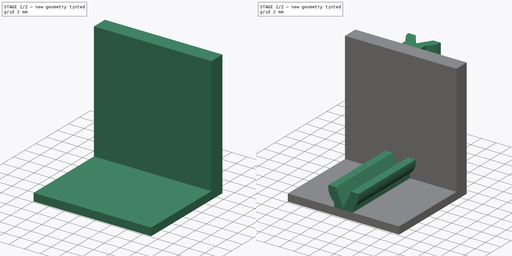
[diagram: build sequence overview — one tinted view per stage of 2, left to right]
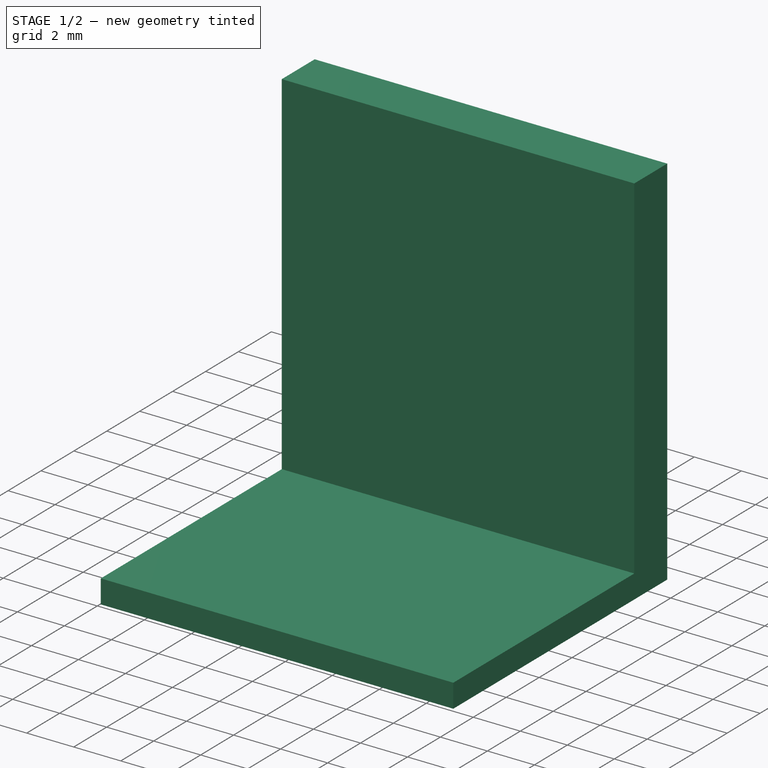
[diagram: stage 1 of 2 — iso view after this stage's code; geometry added in this stage tinted green]
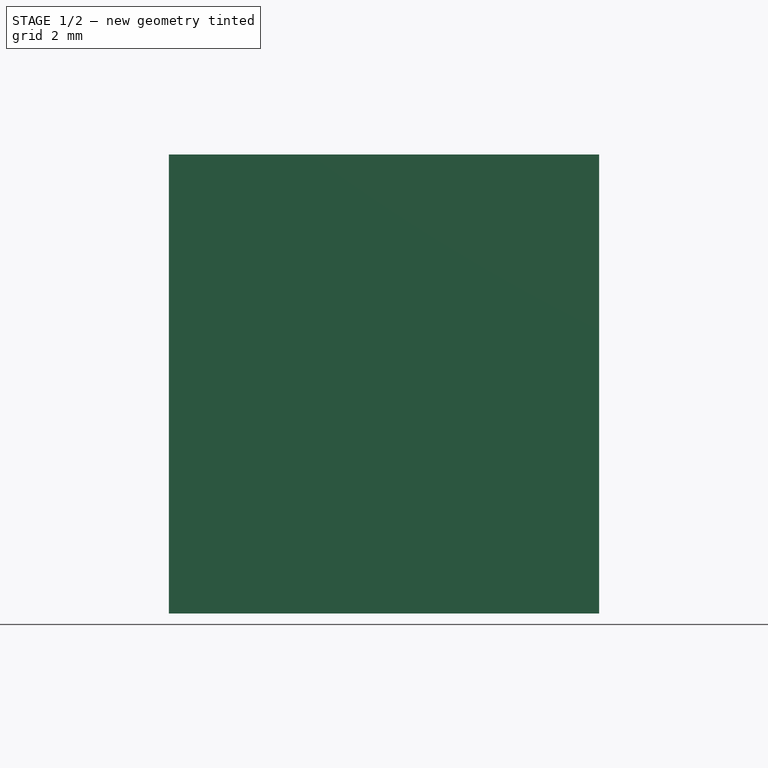
[diagram: stage 1 of 2 — front view after this stage's code; geometry added in this stage tinted green]
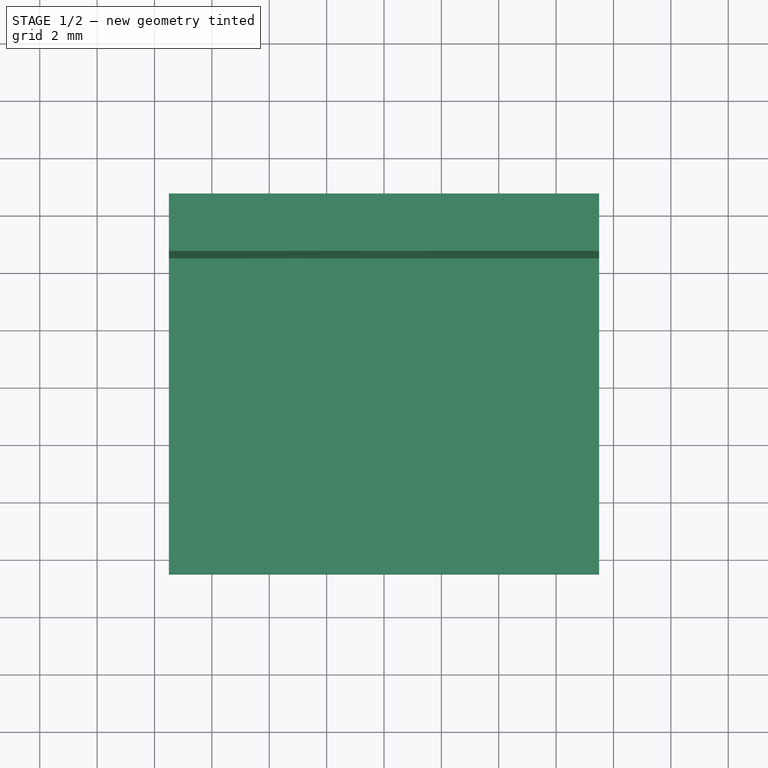
[diagram: stage 1 of 2 — top view after this stage's code; geometry added in this stage tinted green]
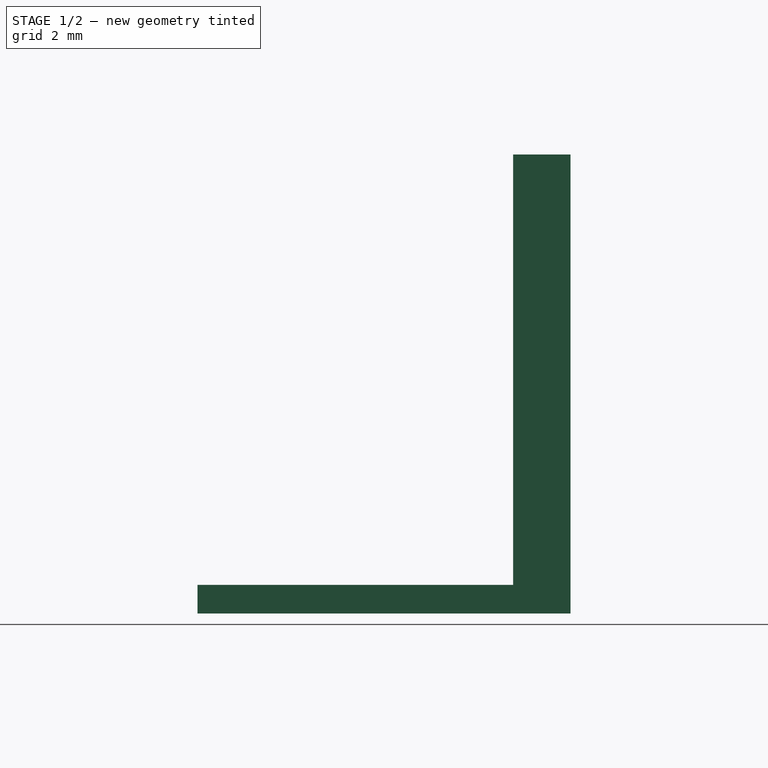
[diagram: stage 1 of 2 — right view after this stage's code; geometry added in this stage tinted green]
FCSTD DOCUMENT  (FreeCAD 0.16R6712 (Git))
Label: edge
License: All rights reserved
LicenseURL: http://en.wikipedia.org/wiki/All_rights_reserved
objects: Sketcher::SketchObject×4, PartDesign::Pad×4
note: 12 computed .brp shape members not serialized (recipe doc carries the construction recipe); baked Part::Feature solids carry a one-line shape summary decoded from their .brp

FEATURE [Sketcher::SketchObject] Sketch
  sketch-geometry (4):
    g0: LineSegment StartX=-7.5 StartY=6.5 StartZ=0 EndX=7.5 EndY=6.5 EndZ=0
    g1: LineSegment StartX=7.5 StartY=6.5 StartZ=0 EndX=7.5 EndY=-6.5 EndZ=0
    g2: LineSegment StartX=7.5 StartY=-6.5 StartZ=0 EndX=-7.5 EndY=-6.5 EndZ=0
    g3: LineSegment StartX=-7.5 StartY=-6.5 StartZ=0 EndX=-7.5 EndY=6.5 EndZ=0
  constraints (12):
    c: Coincident(g0,g1)
    c: Coincident(g1,g2)
    c: Coincident(g2,g3)
    c: Coincident(g3,g0)
    c: Horizontal(g0)
    c: Horizontal(g2)
    c: Vertical(g1)
    c: Vertical(g3)
    c: Symmetric(g0,g0,g-2)
    c: Symmetric(g0,g2,g-1)
    c: DistanceX(g0,g0) = 15
    c: DistanceY(g3,g3) = 13
FEATURE [PartDesign::Pad] Pad
  Length = 1
  Length2 = 100
  Sketch = -> Sketch
  Type = 0
FEATURE [Sketcher::SketchObject] Sketch001
  Placement = pos=(0,0,1) rot=(0,0,1;0rad)
  Support = -> Pad [Face6]
  sketch-geometry (4):
    g0: LineSegment StartX=-7.5 StartY=6.5 StartZ=0 EndX=7.5 EndY=6.5 EndZ=0
    g1: LineSegment StartX=7.5 StartY=6.5 StartZ=0 EndX=7.5 EndY=4.5 EndZ=0
    g2: LineSegment StartX=7.5 StartY=4.5 StartZ=0 EndX=-7.5 EndY=4.5 EndZ=0
    g3: LineSegment StartX=-7.5 StartY=4.5 StartZ=0 EndX=-7.5 EndY=6.5 EndZ=0
  constraints (12):
    c: Coincident(g0,g1)
    c: Coincident(g1,g2)
    c: Coincident(g2,g3)
    c: Coincident(g3,g0)
    c: Horizontal(g0)
    c: Horizontal(g2)
    c: Vertical(g1)
    c: Vertical(g3)
    c: DistanceY(g1,g1) = 2
    c: DistanceY(g-1,g1) = 4.5
    c: DistanceX(g0,g0) = 15
    c: Symmetric(g0,g0,g-2)
FEATURE [PartDesign::Pad] Pad001
  Length = 15
  Length2 = 100
  Sketch = -> Sketch001
  Type = 0
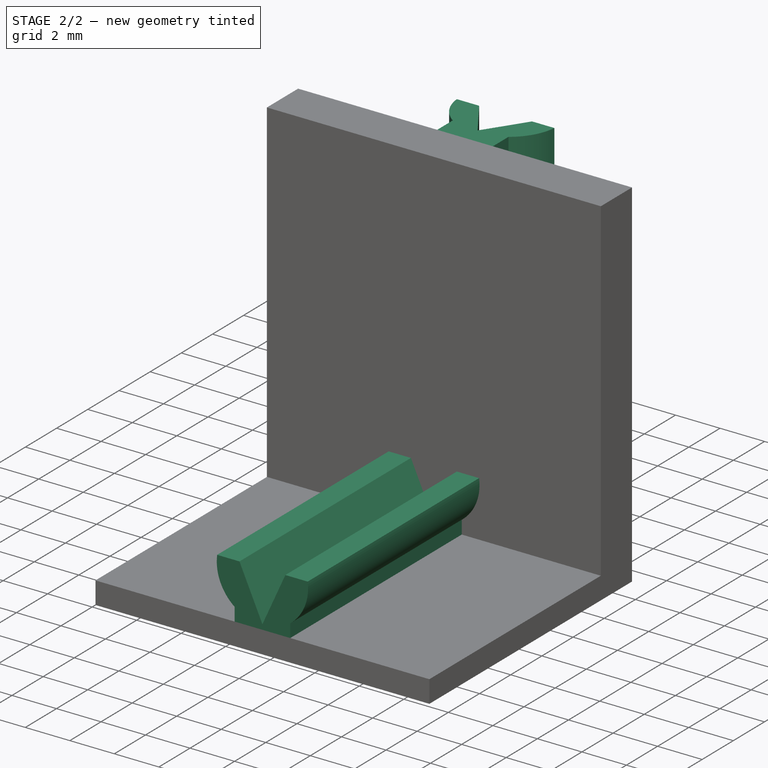
[diagram: stage 2 of 2 — iso view after this stage's code; geometry added in this stage tinted green]
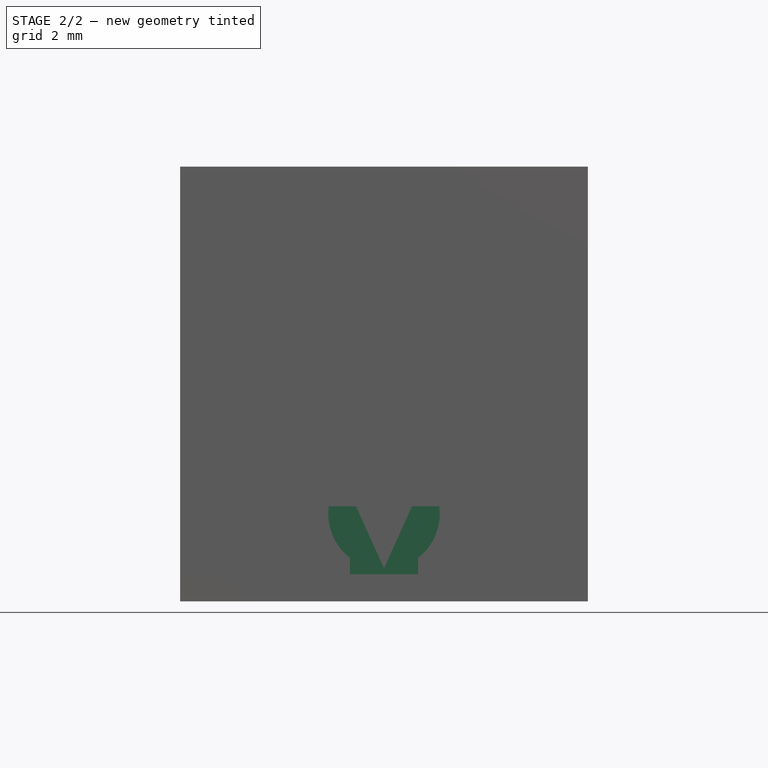
[diagram: stage 2 of 2 — front view after this stage's code; geometry added in this stage tinted green]
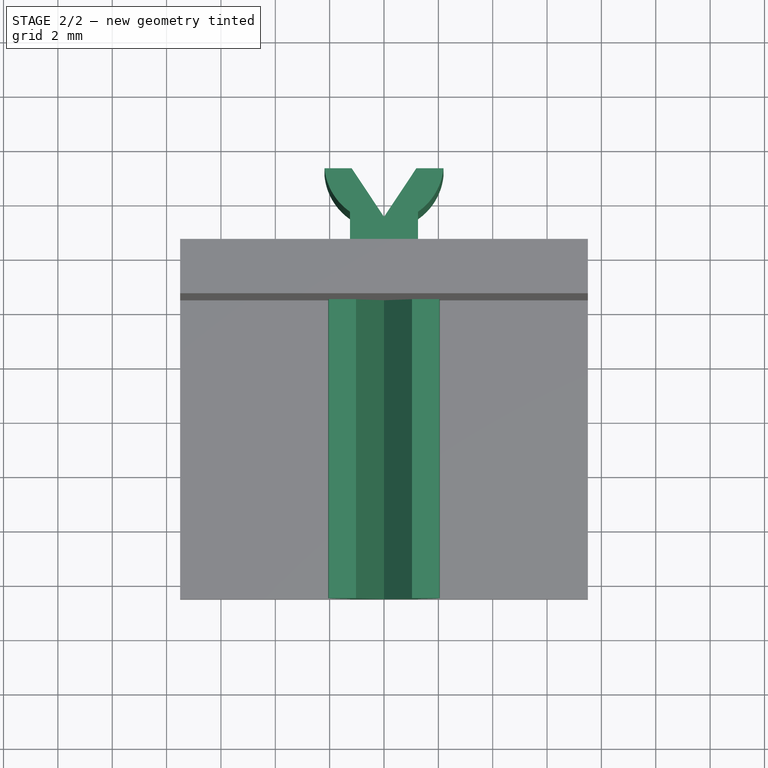
[diagram: stage 2 of 2 — top view after this stage's code; geometry added in this stage tinted green]
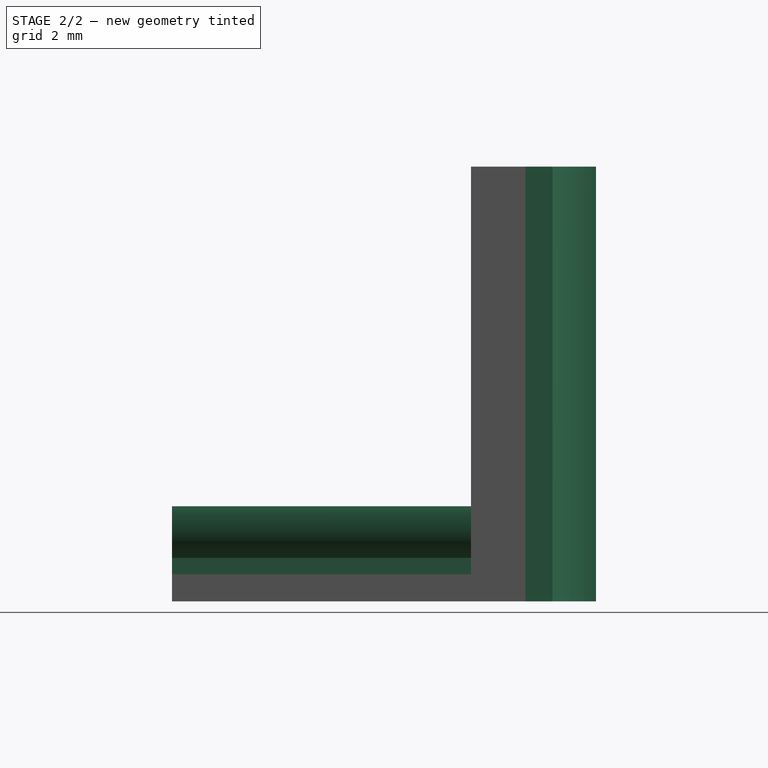
[diagram: stage 2 of 2 — right view after this stage's code; geometry added in this stage tinted green]
FEATURE [Sketcher::SketchObject] Sketch002
  Placement = pos=(0,-6.5,0) rot=(1,0,0;1.5708rad)
  Support = -> Pad001 [Face4]
  sketch-geometry (10):
    g0: LineSegment StartX=-1.25 StartY=1 StartZ=0 EndX=1.25 EndY=1 EndZ=0
    g1: LineSegment StartX=1.25 StartY=1 StartZ=0 EndX=1.25 EndY=1.6 EndZ=0
    g2: LineSegment StartX=-1.25 StartY=1 StartZ=0 EndX=-1.25 EndY=1.6 EndZ=0
    g3: ArcOfCircle CenterX=0 CenterY=3.22481 CenterZ=0 NormalX=0 NormalY=0 NormalZ=1 Radius=2.05 StartAngle=3.00695 EndAngle=4.05664
    g4: ArcOfCircle CenterX=0 CenterY=3.22481 CenterZ=0 NormalX=0 NormalY=0 NormalZ=1 Radius=2.05 StartAngle=5.36814 EndAngle=6.41783
    g5: LineSegment StartX=-2.03145 StartY=3.5 StartZ=0 EndX=-1.03145 EndY=3.5 EndZ=0
    g6: LineSegment StartX=2.03145 StartY=3.5 StartZ=0 EndX=1.03145 EndY=3.5 EndZ=0
    g7: LineSegment StartX=1.03145 StartY=3.5 StartZ=0 EndX=0 EndY=1.22481 EndZ=0
    g8: LineSegment StartX=0 StartY=1.22481 StartZ=0 EndX=-1.03145 EndY=3.5 EndZ=0
    g9: LineSegment [constr] StartX=-1.03145 StartY=3.5 StartZ=0 EndX=1.03145 EndY=3.5 EndZ=0
  constraints (30):
    c: Horizontal(g0)
    c: Coincident(g1,g0)
    c: Coincident(g2,g0)
    c: PointOnObject(g3,g-2)
    c: Coincident(g3,g2)
    c: Coincident(g4,g3)
    c: Coincident(g4,g1)
    c: Coincident(g5,g3)
    c: Horizontal(g5)
    c: Coincident(g6,g4)
    c: Horizontal(g6)
    c: Coincident(g7,g6)
    c: PointOnObject(g7,g-2)
    c: Coincident(g8,g7)
    c: Coincident(g8,g5)
    c: Equal(g5,g6)
    c: DistanceX(g6,g6) = 1
    c: Radius(g4) = 2.05
    c: Equal(g4,g3)
    c: Vertical(g2)
    c: Vertical(g1)
    c: Equal(g2,g1)
    c: DistanceY(g1,g1) = 0.6
    c: DistanceY(g7,g3) = 2
    c: DistanceX(g0,g0) = 2.5
    c: DistanceY(g-1,g0) = 1
    c: Coincident(g9,g5)
    c: Coincident(g9,g6)
    c: Horizontal(g9)
    c: DistanceY(g0,g4) = 2.5
FEATURE [PartDesign::Pad] Pad002
  Length = 11
  Length2 = 100
  Reversed = true
  Sketch = -> Sketch002
  Type = 0
FEATURE [Sketcher::SketchObject] Sketch003
  Placement = pos=(0,0,16) rot=(0,0,1;0rad)
  Support = -> Pad002 [Face12]
  sketch-geometry (10):
    g0: LineSegment StartX=-1.25 StartY=7.5 StartZ=0 EndX=-1.25 EndY=6.5 EndZ=0
    g1: LineSegment StartX=-1.25 StartY=6.5 StartZ=0 EndX=1.25 EndY=6.5 EndZ=0
    g2: LineSegment StartX=1.25 StartY=6.5 StartZ=0 EndX=1.25 EndY=7.5 EndZ=0
    g3: ArcOfCircle CenterX=0 CenterY=9.31039 CenterZ=0 NormalX=0 NormalY=0 NormalZ=1 Radius=2.2 StartAngle=3.23737 EndAngle=4.10809
    g4: ArcOfCircle CenterX=0 CenterY=9.31039 CenterZ=0 NormalX=0 NormalY=0 NormalZ=1 Radius=2.2 StartAngle=5.31668 EndAngle=6.18741
    g5: LineSegment StartX=-2.18992 StartY=9.1 StartZ=0 EndX=-1.18992 EndY=9.1 EndZ=0
    g6: LineSegment StartX=2.18992 StartY=9.1 StartZ=0 EndX=1.18992 EndY=9.1 EndZ=0
    g7: LineSegment StartX=1.18992 StartY=9.1 StartZ=0 EndX=0 EndY=7.31039 EndZ=0
    g8: LineSegment StartX=0 StartY=7.31039 StartZ=0 EndX=-1.18992 EndY=9.1 EndZ=0
    g9: LineSegment [constr] StartX=-1.18992 StartY=9.1 StartZ=0 EndX=1.18992 EndY=9.1 EndZ=0
  constraints (31):
    c: Coincident(g1,g0)
    c: Horizontal(g1)
    c: Coincident(g2,g1)
    c: PointOnObject(g3,g-2)
    c: Coincident(g3,g0)
    c: Coincident(g4,g3)
    c: Coincident(g4,g2)
    c: Vertical(g0)
    c: Vertical(g2)
    c: Symmetric(g0,g1,g-2)
    c: DistanceX(g1,g1) = 2.5
    c: Equal(g2,g0)
    c: DistanceY(g2,g2) = 1
    c: DistanceY(g-1,g1) = 6.5
    c: Coincident(g5,g3)
    c: Horizontal(g5)
    c: Coincident(g6,g4)
    c: Horizontal(g6)
    c: Coincident(g7,g6)
    c: PointOnObject(g7,g-2)
    c: Coincident(g8,g7)
    c: Coincident(g8,g5)
    c: Equal(g6,g5)
    c: Radius(g3) = 2.2
    c: Equal(g3,g4)
    c: Coincident(g9,g5)
    c: Coincident(g9,g6)
    c: Horizontal(g9)
    c: DistanceX(g6,g6) = 1
    c: DistanceY(g7,g3) = 2
    c: DistanceY(g1,g4) = 2.6
FEATURE [PartDesign::Pad] Pad003
  Length = 16
  Length2 = 100
  Reversed = true
  Sketch = -> Sketch003
  Type = 0
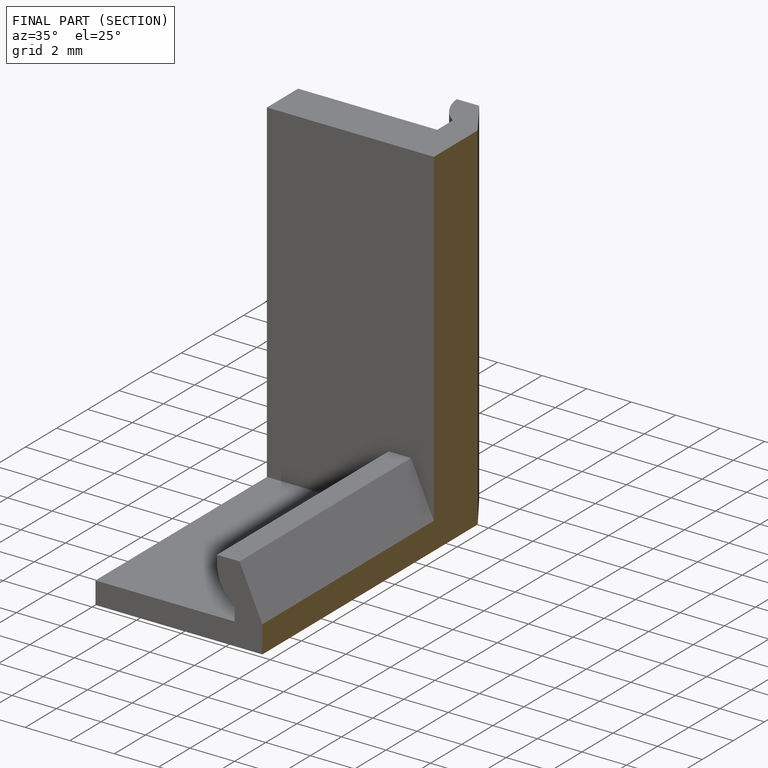
[diagram: finished part — half-section view (interior)]
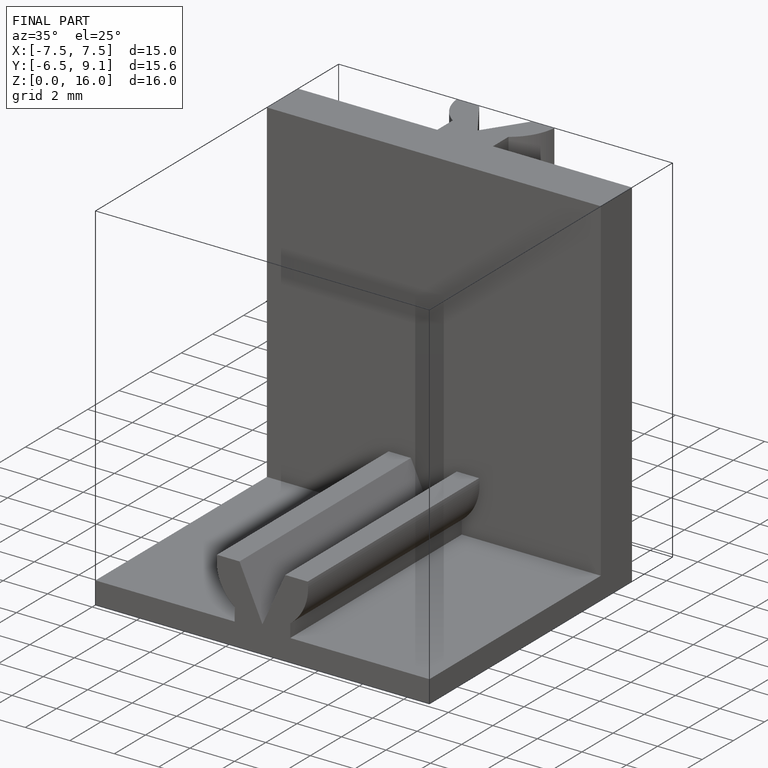
[diagram: finished part — iso view with bounding-box wireframe]
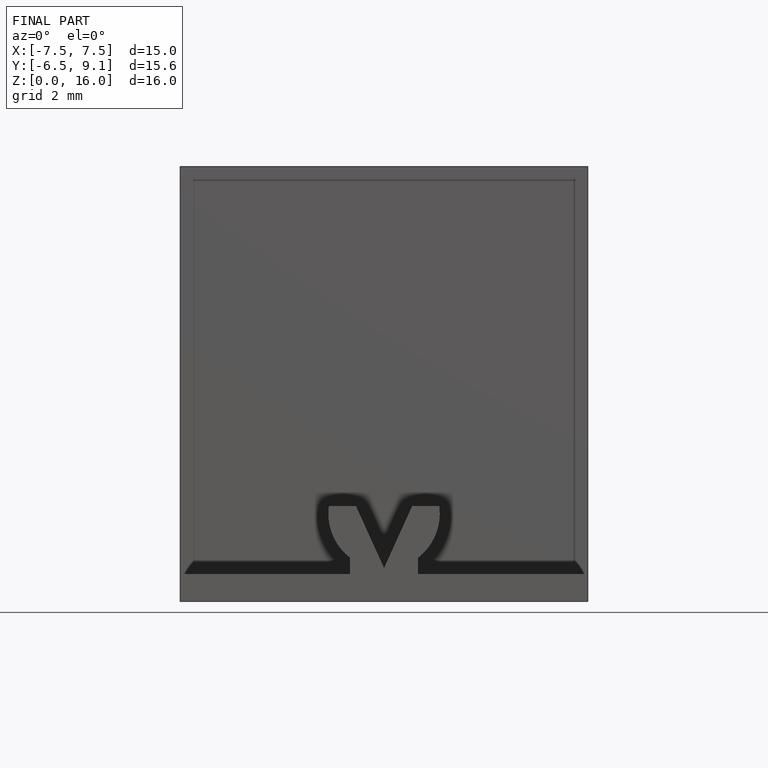
[diagram: finished part — front view with bounding-box wireframe]
